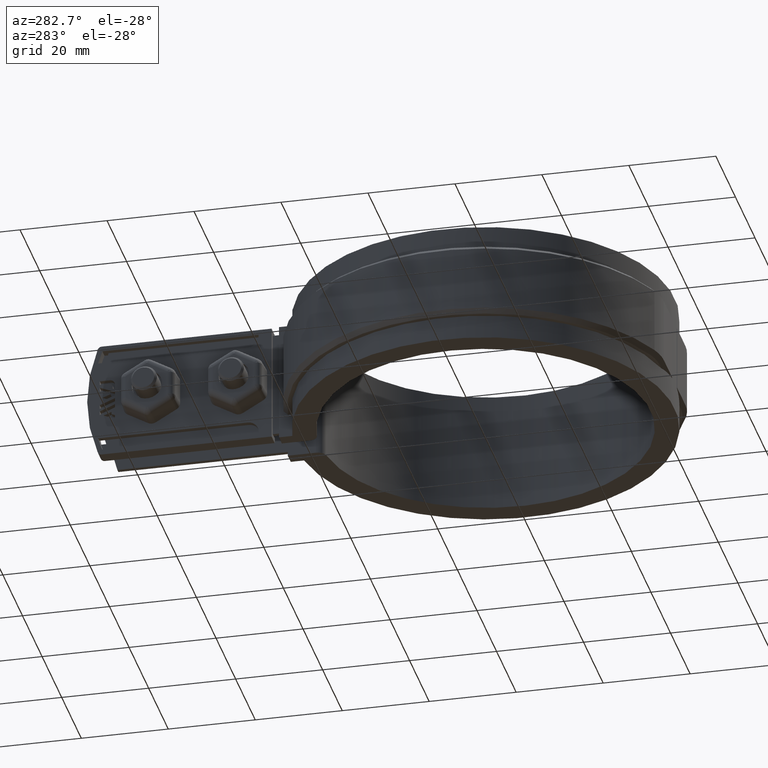
[diagram: clean part render]
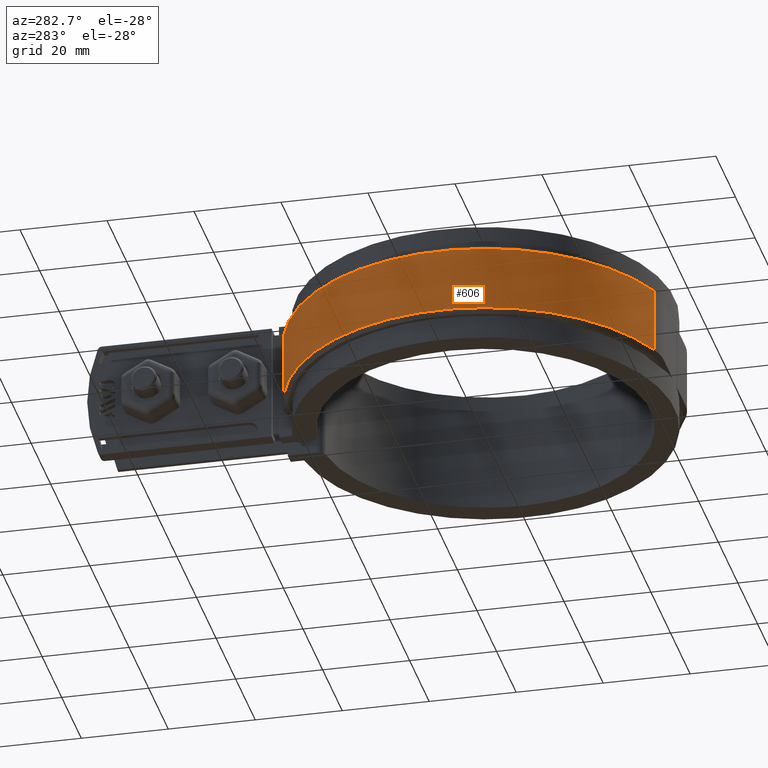
[diagram: same view with one face highlighted and labeled with its STEP entity id]
A machine part, auxiliary view. The second image highlights one B-rep face of the part: STEP entity #606.
In plain terms, the highlighted cylindrical surface (partial cylindrical patch) has radius 45.5 mm, axis along (0, 0, -1).
Its self-contained STEP definition (entity closure, byte-faithful):
#606 = ADVANCED_FACE( '', ( #1142 ), #1143, .T. );
#1142 = FACE_OUTER_BOUND( '', #2481, .T. );
#1143 = CYLINDRICAL_SURFACE( '', #2482, 45.5000000000000 );
#2481 = EDGE_LOOP( '', ( #5723, #5724, #5725, #5726 ) );
#2482 = AXIS2_PLACEMENT_3D( '', #5727, #5728, #5729 );
#5723 = ORIENTED_EDGE( '', *, *, #7871, .T. );
#5724 = ORIENTED_EDGE( '', *, *, #7863, .T. );
#5725 = ORIENTED_EDGE( '', *, *, #7903, .F. );
#5726 = ORIENTED_EDGE( '', *, *, #7769, .T. );
#5727 = CARTESIAN_POINT( '', ( -1.73472347597681E-015, 6.93889390390723E-015, 8.50000000000000 ) );
#5728 = DIRECTION( '', ( 0.000000000000000, 0.000000000000000, -1.00000000000000 ) );
#5729 = DIRECTION( '', ( 0.109890109890110, -0.993943742748220, 0.000000000000000 ) );
#7769 = EDGE_CURVE( '', #8973, #8970, #8974, .T. );
#7863 = EDGE_CURVE( '', #9125, #9129, #9131, .T. );
#7871 = EDGE_CURVE( '', #8970, #9125, #9142, .F. );
#7903 = EDGE_CURVE( '', #8973, #9129, #9191, .T. );
#8970 = VERTEX_POINT( '', #12246 );
#8973 = VERTEX_POINT( '', #12252 );
#8974 = CIRCLE( '', #12253, 45.5000000000000 );
#9125 = VERTEX_POINT( '', #12849 );
#9129 = VERTEX_POINT( '', #12856 );
#9131 = CIRCLE( '', #12859, 45.5000000000000 );
#9142 = LINE( '', #12874, #12875 );
#9191 = LINE( '', #12983, #12984 );
#12246 = CARTESIAN_POINT( '', ( -6.00000000000000, 45.1026606753970, 7.49999999999999 ) );
#12252 = CARTESIAN_POINT( '', ( -16.2051315524462, -42.5163934426229, 7.49999999999995 ) );
#12253 = AXIS2_PLACEMENT_3D( '', #14763, #14764, #14765 );
#12849 = CARTESIAN_POINT( '', ( -6.00000000000000, 45.1026606753970, -7.50000000000000 ) );
#12856 = CARTESIAN_POINT( '', ( -16.2051315524462, -42.5163934426229, -7.49999999999995 ) );
#12859 = AXIS2_PLACEMENT_3D( '', #14865, #14866, #14867 );
#12874 = CARTESIAN_POINT( '', ( -6.00000000000000, 45.1026606753970, 8.50000000000000 ) );
#12875 = VECTOR( '', #14881, 1000.00000000000 );
#12983 = CARTESIAN_POINT( '', ( -16.2051315524462, -42.5163934426230, 8.50000000000000 ) );
#12984 = VECTOR( '', #14910, 1000.00000000000 );
#14763 = CARTESIAN_POINT( '', ( -1.73472347597681E-015, 6.93889390390723E-015, 7.49999999999999 ) );
#14764 = DIRECTION( '', ( 0.000000000000000, 0.000000000000000, -1.00000000000000 ) );
#14765 = DIRECTION( '', ( -1.00000000000000, 0.000000000000000, 0.000000000000000 ) );
#14865 = CARTESIAN_POINT( '', ( -1.73472347597681E-015, 6.93889390390723E-015, -7.50000000000000 ) );
#14866 = DIRECTION( '', ( 0.000000000000000, 0.000000000000000, 1.00000000000000 ) );
#14867 = DIRECTION( '', ( 1.00000000000000, 0.000000000000000, 0.000000000000000 ) );
#14881 = DIRECTION( '', ( 0.000000000000000, 0.000000000000000, 1.00000000000000 ) );
#14910 = DIRECTION( '', ( 0.000000000000000, 0.000000000000000, -1.00000000000000 ) );